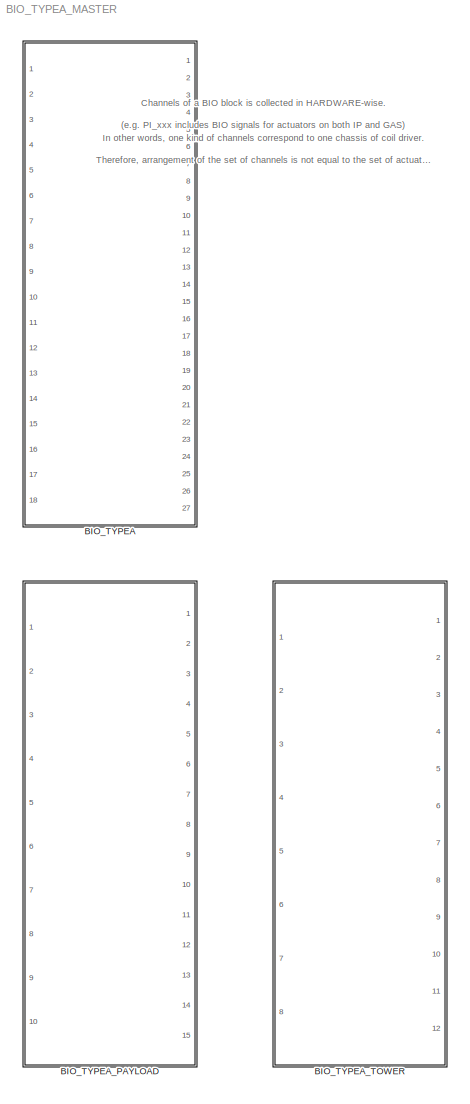
MODEL BIO_TYPEA_MASTER
KIND library
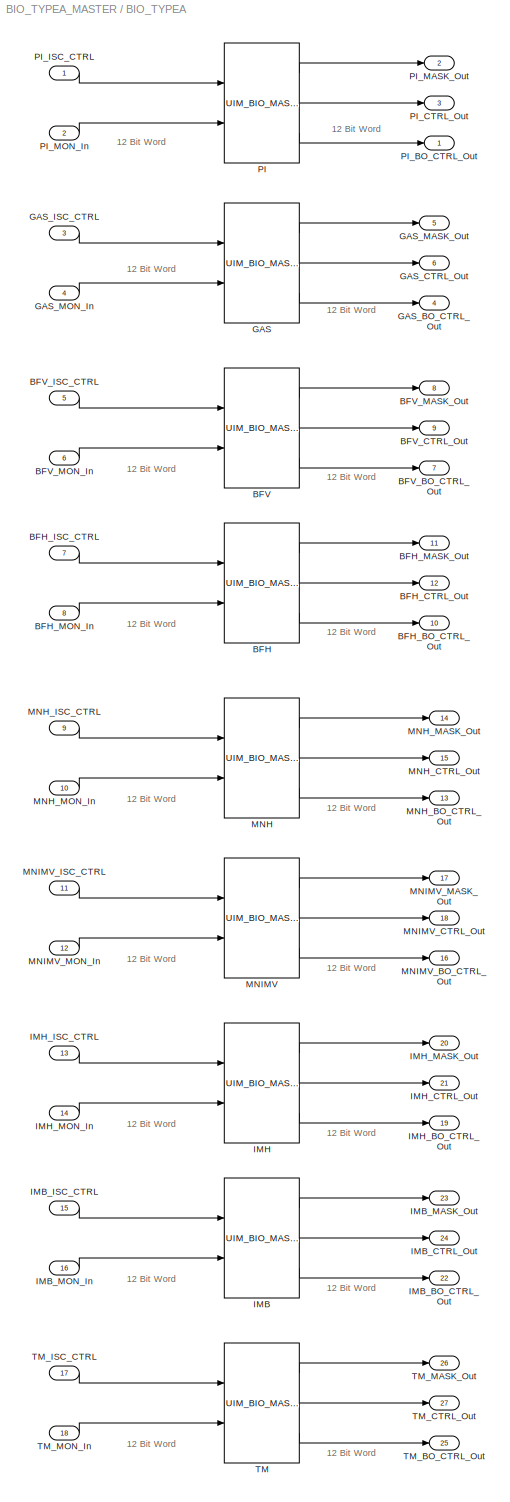
BLOCK [SubSystem] BIO_TYPEA
  Ports = [18, 27]
  RequestExecContextInheritance = off
  SID = 1
  Variant = off
BLOCK [Reference] BIO_TYPEA/BFH  REF=STATE_BIO_MASTER/UIM_BIO_MASTER
  Ports = [2, 3]
  SID = 57
  SourceBlock = STATE_BIO_MASTER/UIM_BIO_MASTER
  SourceType = SubSystem
BLOCK [Outport] BIO_TYPEA/BFH_BO_CTRL_Out
  IconDisplay = Port number
  Port = 10
  SID = 58
BLOCK [Outport] BIO_TYPEA/BFH_CTRL_Out
  IconDisplay = Port number
  Port = 12
  SID = 60
BLOCK [Inport] BIO_TYPEA/BFH_ISC_CTRL
  IconDisplay = Port number
  Port = 7
  SID = 55
BLOCK [Outport] BIO_TYPEA/BFH_MASK_Out
  IconDisplay = Port number
  Port = 11
  SID = 59
BLOCK [Inport] BIO_TYPEA/BFH_MON_In
  IconDisplay = Port number
  Port = 8
  SID = 56
BLOCK [Reference] BIO_TYPEA/BFV  REF=STATE_BIO_MASTER/UIM_BIO_MASTER
  Ports = [2, 3]
  SID = 36
  SourceBlock = STATE_BIO_MASTER/UIM_BIO_MASTER
  SourceType = SubSystem
BLOCK [Outport] BIO_TYPEA/BFV_BO_CTRL_Out
  IconDisplay = Port number
  Port = 7
  SID = 23
BLOCK [Outport] BIO_TYPEA/BFV_CTRL_Out
  IconDisplay = Port number
  Port = 9
  SID = 25
BLOCK [Inport] BIO_TYPEA/BFV_ISC_CTRL
  IconDisplay = Port number
  Port = 5
  SID = 8
BLOCK [Outport] BIO_TYPEA/BFV_MASK_Out
  IconDisplay = Port number
  Port = 8
  SID = 24
BLOCK [Inport] BIO_TYPEA/BFV_MON_In
  IconDisplay = Port number
  Port = 6
  SID = 9
BLOCK [Reference] BIO_TYPEA/GAS  REF=STATE_BIO_MASTER/UIM_BIO_MASTER
  Ports = [2, 3]
  SID = 35
  SourceBlock = STATE_BIO_MASTER/UIM_BIO_MASTER
  SourceType = SubSystem
BLOCK [Outport] BIO_TYPEA/GAS_BO_CTRL_Out
  IconDisplay = Port number
  Port = 4
  SID = 17
BLOCK [Outport] BIO_TYPEA/GAS_CTRL_Out
  IconDisplay = Port number
  Port = 6
  SID = 19
BLOCK [Inport] BIO_TYPEA/GAS_ISC_CTRL
  IconDisplay = Port number
  Port = 3
  SID = 4
BLOCK [Outport] BIO_TYPEA/GAS_MASK_Out
  IconDisplay = Port number
  Port = 5
  SID = 18
BLOCK [Inport] BIO_TYPEA/GAS_MON_In
  IconDisplay = Port number
  Port = 4
  SID = 5
BLOCK [Reference] BIO_TYPEA/IMB  REF=STATE_BIO_MASTER/UIM_BIO_MASTER
  Ports = [2, 3]
  SID = 73
  SourceBlock = STATE_BIO_MASTER/UIM_BIO_MASTER
  SourceType = SubSystem
BLOCK [Outport] BIO_TYPEA/IMB_BO_CTRL_Out
  IconDisplay = Port number
  Port = 22
  SID = 74
BLOCK [Outport] BIO_TYPEA/IMB_CTRL_Out
  IconDisplay = Port number
  Port = 24
  SID = 76
BLOCK [Inport] BIO_TYPEA/IMB_ISC_CTRL
  IconDisplay = Port number
  Port = 15
  SID = 71
BLOCK [Outport] BIO_TYPEA/IMB_MASK_Out
  IconDisplay = Port number
  Port = 23
  SID = 75
BLOCK [Inport] BIO_TYPEA/IMB_MON_In
  IconDisplay = Port number
  Port = 16
  SID = 72
BLOCK [Reference] BIO_TYPEA/IMH  REF=STATE_BIO_MASTER/UIM_BIO_MASTER
  Ports = [2, 3]
  SID = 40
  SourceBlock = STATE_BIO_MASTER/UIM_BIO_MASTER
  SourceType = SubSystem
BLOCK [Outport] BIO_TYPEA/IMH_BO_CTRL_Out
  IconDisplay = Port number
  Port = 19
  SID = 41
BLOCK [Outport] BIO_TYPEA/IMH_CTRL_Out
  IconDisplay = Port number
  Port = 21
  SID = 43
BLOCK [Inport] BIO_TYPEA/IMH_ISC_CTRL
  IconDisplay = Port number
  Port = 13
  SID = 38
BLOCK [Outport] BIO_TYPEA/IMH_MASK_Out
  IconDisplay = Port number
  Port = 20
  SID = 42
BLOCK [Inport] BIO_TYPEA/IMH_MON_In
  IconDisplay = Port number
  Port = 14
  SID = 39
BLOCK [Reference] BIO_TYPEA/MNH  REF=STATE_BIO_MASTER/UIM_BIO_MASTER
  Ports = [2, 3]
  SID = 37
  SourceBlock = STATE_BIO_MASTER/UIM_BIO_MASTER
  SourceType = SubSystem
BLOCK [Outport] BIO_TYPEA/MNH_BO_CTRL_Out
  IconDisplay = Port number
  Port = 13
  SID = 20
BLOCK [Outport] BIO_TYPEA/MNH_CTRL_Out
  IconDisplay = Port number
  Port = 15
  SID = 22
BLOCK [Inport] BIO_TYPEA/MNH_ISC_CTRL
  IconDisplay = Port number
  Port = 9
  SID = 6
BLOCK [Outport] BIO_TYPEA/MNH_MASK_Out
  IconDisplay = Port number
  Port = 14
  SID = 21
BLOCK [Inport] BIO_TYPEA/MNH_MON_In
  IconDisplay = Port number
  Port = 10
  SID = 7
BLOCK [Reference] BIO_TYPEA/MNIMV  REF=STATE_BIO_MASTER/UIM_BIO_MASTER
  Ports = [2, 3]
  SID = 65
  SourceBlock = STATE_BIO_MASTER/UIM_BIO_MASTER
  SourceType = SubSystem
BLOCK [Outport] BIO_TYPEA/MNIMV_BO_CTRL_Out
  IconDisplay = Port number
  Port = 16
  SID = 66
BLOCK [Outport] BIO_TYPEA/MNIMV_CTRL_Out
  IconDisplay = Port number
  Port = 18
  SID = 68
BLOCK [Inport] BIO_TYPEA/MNIMV_ISC_CTRL
  IconDisplay = Port number
  Port = 11
  SID = 63
BLOCK [Outport] BIO_TYPEA/MNIMV_MASK_Out
  IconDisplay = Port number
  Port = 17
  SID = 67
BLOCK [Inport] BIO_TYPEA/MNIMV_MON_In
  IconDisplay = Port number
  Port = 12
  SID = 64
BLOCK [Reference] BIO_TYPEA/PI  REF=STATE_BIO_MASTER/UIM_BIO_MASTER
  Ports = [2, 3]
  SID = 34
  SourceBlock = STATE_BIO_MASTER/UIM_BIO_MASTER
  SourceType = SubSystem
BLOCK [Outport] BIO_TYPEA/PI_BO_CTRL_Out
  IconDisplay = Port number
  SID = 14
BLOCK [Outport] BIO_TYPEA/PI_CTRL_Out
  IconDisplay = Port number
  Port = 3
  SID = 16
BLOCK [Inport] BIO_TYPEA/PI_ISC_CTRL
  IconDisplay = Port number
  SID = 2
BLOCK [Outport] BIO_TYPEA/PI_MASK_Out
  IconDisplay = Port number
  Port = 2
  SID = 15
BLOCK [Inport] BIO_TYPEA/PI_MON_In
  IconDisplay = Port number
  Port = 2
  SID = 3
BLOCK [Reference] BIO_TYPEA/TM  REF=STATE_BIO_MASTER/UIM_BIO_MASTER
  Ports = [2, 3]
  SID = 48
  SourceBlock = STATE_BIO_MASTER/UIM_BIO_MASTER
  SourceType = SubSystem
BLOCK [Outport] BIO_TYPEA/TM_BO_CTRL_Out
  IconDisplay = Port number
  Port = 25
  SID = 49
BLOCK [Outport] BIO_TYPEA/TM_CTRL_Out
  IconDisplay = Port number
  Port = 27
  SID = 51
BLOCK [Inport] BIO_TYPEA/TM_ISC_CTRL
  IconDisplay = Port number
  Port = 17
  SID = 46
BLOCK [Outport] BIO_TYPEA/TM_MASK_Out
  IconDisplay = Port number
  Port = 26
  SID = 50
BLOCK [Inport] BIO_TYPEA/TM_MON_In
  IconDisplay = Port number
  Port = 18
  SID = 47
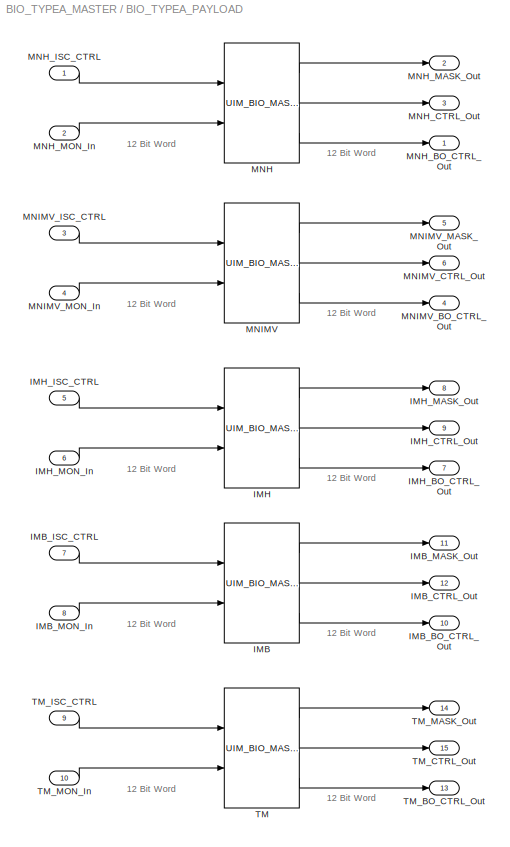
BLOCK [SubSystem] BIO_TYPEA_PAYLOAD
  Ports = [10, 15]
  RequestExecContextInheritance = off
  SID = 79
  Variant = off
BLOCK [Reference] BIO_TYPEA_PAYLOAD/IMB  REF=STATE_BIO_MASTER/UIM_BIO_MASTER
  Ports = [2, 3]
  SID = 102
  SourceBlock = STATE_BIO_MASTER/UIM_BIO_MASTER
  SourceType = SubSystem
BLOCK [Outport] BIO_TYPEA_PAYLOAD/IMB_BO_CTRL_Out
  IconDisplay = Port number
  Port = 10
  SID = 129
BLOCK [Outport] BIO_TYPEA_PAYLOAD/IMB_CTRL_Out
  IconDisplay = Port number
  Port = 12
  SID = 131
BLOCK [Inport] BIO_TYPEA_PAYLOAD/IMB_ISC_CTRL
  IconDisplay = Port number
  Port = 7
  SID = 95
BLOCK [Outport] BIO_TYPEA_PAYLOAD/IMB_MASK_Out
  IconDisplay = Port number
  Port = 11
  SID = 130
BLOCK [Inport] BIO_TYPEA_PAYLOAD/IMB_MON_In
  IconDisplay = Port number
  Port = 8
  SID = 96
BLOCK [Reference] BIO_TYPEA_PAYLOAD/IMH  REF=STATE_BIO_MASTER/UIM_BIO_MASTER
  Ports = [2, 3]
  SID = 103
  SourceBlock = STATE_BIO_MASTER/UIM_BIO_MASTER
  SourceType = SubSystem
BLOCK [Outport] BIO_TYPEA_PAYLOAD/IMH_BO_CTRL_Out
  IconDisplay = Port number
  Port = 7
  SID = 126
BLOCK [Outport] BIO_TYPEA_PAYLOAD/IMH_CTRL_Out
  IconDisplay = Port number
  Port = 9
  SID = 128
BLOCK [Inport] BIO_TYPEA_PAYLOAD/IMH_ISC_CTRL
  IconDisplay = Port number
  Port = 5
  SID = 93
BLOCK [Outport] BIO_TYPEA_PAYLOAD/IMH_MASK_Out
  IconDisplay = Port number
  Port = 8
  SID = 127
BLOCK [Inport] BIO_TYPEA_PAYLOAD/IMH_MON_In
  IconDisplay = Port number
  Port = 6
  SID = 94
BLOCK [Reference] BIO_TYPEA_PAYLOAD/MNH  REF=STATE_BIO_MASTER/UIM_BIO_MASTER
  Ports = [2, 3]
  SID = 104
  SourceBlock = STATE_BIO_MASTER/UIM_BIO_MASTER
  SourceType = SubSystem
BLOCK [Outport] BIO_TYPEA_PAYLOAD/MNH_BO_CTRL_Out
  IconDisplay = Port number
  SID = 120
BLOCK [Outport] BIO_TYPEA_PAYLOAD/MNH_CTRL_Out
  IconDisplay = Port number
  Port = 3
  SID = 122
BLOCK [Inport] BIO_TYPEA_PAYLOAD/MNH_ISC_CTRL
  IconDisplay = Port number
  SID = 89
BLOCK [Outport] BIO_TYPEA_PAYLOAD/MNH_MASK_Out
  IconDisplay = Port number
  Port = 2
  SID = 121
BLOCK [Inport] BIO_TYPEA_PAYLOAD/MNH_MON_In
  IconDisplay = Port number
  Port = 2
  SID = 90
BLOCK [Reference] BIO_TYPEA_PAYLOAD/MNIMV  REF=STATE_BIO_MASTER/UIM_BIO_MASTER
  Ports = [2, 3]
  SID = 105
  SourceBlock = STATE_BIO_MASTER/UIM_BIO_MASTER
  SourceType = SubSystem
BLOCK [Outport] BIO_TYPEA_PAYLOAD/MNIMV_BO_CTRL_Out
  IconDisplay = Port number
  Port = 4
  SID = 123
BLOCK [Outport] BIO_TYPEA_PAYLOAD/MNIMV_CTRL_Out
  IconDisplay = Port number
  Port = 6
  SID = 125
BLOCK [Inport] BIO_TYPEA_PAYLOAD/MNIMV_ISC_CTRL
  IconDisplay = Port number
  Port = 3
  SID = 91
BLOCK [Outport] BIO_TYPEA_PAYLOAD/MNIMV_MASK_Out
  IconDisplay = Port number
  Port = 5
  SID = 124
BLOCK [Inport] BIO_TYPEA_PAYLOAD/MNIMV_MON_In
  IconDisplay = Port number
  Port = 4
  SID = 92
BLOCK [Reference] BIO_TYPEA_PAYLOAD/TM  REF=STATE_BIO_MASTER/UIM_BIO_MASTER
  Ports = [2, 3]
  SID = 107
  SourceBlock = STATE_BIO_MASTER/UIM_BIO_MASTER
  SourceType = SubSystem
BLOCK [Outport] BIO_TYPEA_PAYLOAD/TM_BO_CTRL_Out
  IconDisplay = Port number
  Port = 13
  SID = 132
BLOCK [Outport] BIO_TYPEA_PAYLOAD/TM_CTRL_Out
  IconDisplay = Port number
  Port = 15
  SID = 134
BLOCK [Inport] BIO_TYPEA_PAYLOAD/TM_ISC_CTRL
  IconDisplay = Port number
  Port = 9
  SID = 97
BLOCK [Outport] BIO_TYPEA_PAYLOAD/TM_MASK_Out
  IconDisplay = Port number
  Port = 14
  SID = 133
BLOCK [Inport] BIO_TYPEA_PAYLOAD/TM_MON_In
  IconDisplay = Port number
  Port = 10
  SID = 98
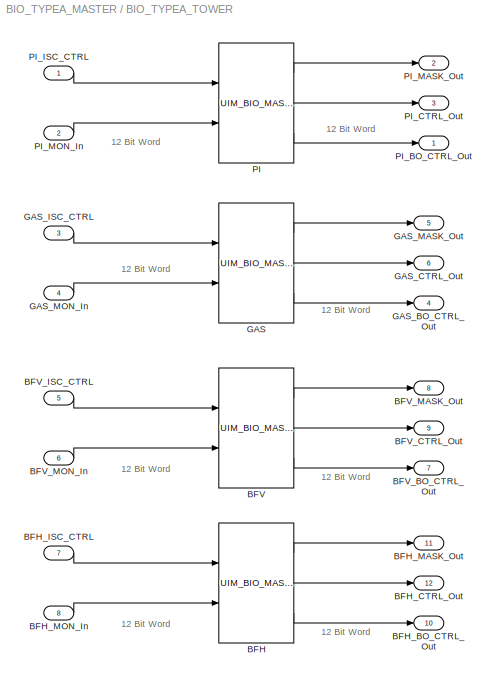
BLOCK [SubSystem] BIO_TYPEA_TOWER
  Ports = [8, 12]
  RequestExecContextInheritance = off
  SID = 80
  Variant = off
BLOCK [Reference] BIO_TYPEA_TOWER/BFH  REF=STATE_BIO_MASTER/UIM_BIO_MASTER
  Ports = [2, 3]
  SID = 171
  SourceBlock = STATE_BIO_MASTER/UIM_BIO_MASTER
  SourceType = SubSystem
BLOCK [Outport] BIO_TYPEA_TOWER/BFH_BO_CTRL_Out
  IconDisplay = Port number
  Port = 10
  SID = 189
BLOCK [Outport] BIO_TYPEA_TOWER/BFH_CTRL_Out
  IconDisplay = Port number
  Port = 12
  SID = 191
BLOCK [Inport] BIO_TYPEA_TOWER/BFH_ISC_CTRL
  IconDisplay = Port number
  Port = 7
  SID = 159
BLOCK [Outport] BIO_TYPEA_TOWER/BFH_MASK_Out
  IconDisplay = Port number
  Port = 11
  SID = 190
BLOCK [Inport] BIO_TYPEA_TOWER/BFH_MON_In
  IconDisplay = Port number
  Port = 8
  SID = 160
BLOCK [Reference] BIO_TYPEA_TOWER/BFV  REF=STATE_BIO_MASTER/UIM_BIO_MASTER
  Ports = [2, 3]
  SID = 172
  SourceBlock = STATE_BIO_MASTER/UIM_BIO_MASTER
  SourceType = SubSystem
BLOCK [Outport] BIO_TYPEA_TOWER/BFV_BO_CTRL_Out
  IconDisplay = Port number
  Port = 7
  SID = 186
BLOCK [Outport] BIO_TYPEA_TOWER/BFV_CTRL_Out
  IconDisplay = Port number
  Port = 9
  SID = 188
BLOCK [Inport] BIO_TYPEA_TOWER/BFV_ISC_CTRL
  IconDisplay = Port number
  Port = 5
  SID = 157
BLOCK [Outport] BIO_TYPEA_TOWER/BFV_MASK_Out
  IconDisplay = Port number
  Port = 8
  SID = 187
BLOCK [Inport] BIO_TYPEA_TOWER/BFV_MON_In
  IconDisplay = Port number
  Port = 6
  SID = 158
BLOCK [Reference] BIO_TYPEA_TOWER/GAS  REF=STATE_BIO_MASTER/UIM_BIO_MASTER
  Ports = [2, 3]
  SID = 173
  SourceBlock = STATE_BIO_MASTER/UIM_BIO_MASTER
  SourceType = SubSystem
BLOCK [Outport] BIO_TYPEA_TOWER/GAS_BO_CTRL_Out
  IconDisplay = Port number
  Port = 4
  SID = 183
BLOCK [Outport] BIO_TYPEA_TOWER/GAS_CTRL_Out
  IconDisplay = Port number
  Port = 6
  SID = 185
BLOCK [Inport] BIO_TYPEA_TOWER/GAS_ISC_CTRL
  IconDisplay = Port number
  Port = 3
  SID = 155
BLOCK [Outport] BIO_TYPEA_TOWER/GAS_MASK_Out
  IconDisplay = Port number
  Port = 5
  SID = 184
BLOCK [Inport] BIO_TYPEA_TOWER/GAS_MON_In
  IconDisplay = Port number
  Port = 4
  SID = 156
BLOCK [Reference] BIO_TYPEA_TOWER/PI  REF=STATE_BIO_MASTER/UIM_BIO_MASTER
  Ports = [2, 3]
  SID = 178
  SourceBlock = STATE_BIO_MASTER/UIM_BIO_MASTER
  SourceType = SubSystem
BLOCK [Outport] BIO_TYPEA_TOWER/PI_BO_CTRL_Out
  IconDisplay = Port number
  SID = 180
BLOCK [Outport] BIO_TYPEA_TOWER/PI_CTRL_Out
  IconDisplay = Port number
  Port = 3
  SID = 182
BLOCK [Inport] BIO_TYPEA_TOWER/PI_ISC_CTRL
  IconDisplay = Port number
  SID = 153
BLOCK [Outport] BIO_TYPEA_TOWER/PI_MASK_Out
  IconDisplay = Port number
  Port = 2
  SID = 181
BLOCK [Inport] BIO_TYPEA_TOWER/PI_MON_In
  IconDisplay = Port number
  Port = 2
  SID = 154
ANNOTATION (root): Channels of a BIO block is collected in HARDWARE-wise.\nIn other words, one kind of channels correspond to one chassis of coil driver.\n(e.g. PI_xxx includes BIO signals for actuators on both IP and GAS)\nTherefore, arrangement of the set of channels is not equal to the set of actuators on each stage.
ANNOTATION BIO_TYPEA: 12 Bit Word
ANNOTATION BIO_TYPEA_PAYLOAD: 12 Bit Word
ANNOTATION BIO_TYPEA_TOWER: 12 Bit Word
LINE BIO_TYPEA/BFH:1 -> BIO_TYPEA/BFH_MASK_Out:1
LINE BIO_TYPEA/BFH:2 -> BIO_TYPEA/BFH_CTRL_Out:1
LINE BIO_TYPEA/BFH:3 -> BIO_TYPEA/BFH_BO_CTRL_Out:1
LINE BIO_TYPEA/BFH_ISC_CTRL:1 -> BIO_TYPEA/BFH:1
LINE BIO_TYPEA/BFH_MON_In:1 -> BIO_TYPEA/BFH:2
LINE BIO_TYPEA/BFV:1 -> BIO_TYPEA/BFV_MASK_Out:1
LINE BIO_TYPEA/BFV:2 -> BIO_TYPEA/BFV_CTRL_Out:1
LINE BIO_TYPEA/BFV:3 -> BIO_TYPEA/BFV_BO_CTRL_Out:1
LINE BIO_TYPEA/BFV_ISC_CTRL:1 -> BIO_TYPEA/BFV:1
LINE BIO_TYPEA/BFV_MON_In:1 -> BIO_TYPEA/BFV:2
LINE BIO_TYPEA/GAS:1 -> BIO_TYPEA/GAS_MASK_Out:1
LINE BIO_TYPEA/GAS:2 -> BIO_TYPEA/GAS_CTRL_Out:1
LINE BIO_TYPEA/GAS:3 -> BIO_TYPEA/GAS_BO_CTRL_Out:1
LINE BIO_TYPEA/GAS_ISC_CTRL:1 -> BIO_TYPEA/GAS:1
LINE BIO_TYPEA/GAS_MON_In:1 -> BIO_TYPEA/GAS:2
LINE BIO_TYPEA/IMB:1 -> BIO_TYPEA/IMB_MASK_Out:1
LINE BIO_TYPEA/IMB:2 -> BIO_TYPEA/IMB_CTRL_Out:1
LINE BIO_TYPEA/IMB:3 -> BIO_TYPEA/IMB_BO_CTRL_Out:1
LINE BIO_TYPEA/IMB_ISC_CTRL:1 -> BIO_TYPEA/IMB:1
LINE BIO_TYPEA/IMB_MON_In:1 -> BIO_TYPEA/IMB:2
LINE BIO_TYPEA/IMH:1 -> BIO_TYPEA/IMH_MASK_Out:1
LINE BIO_TYPEA/IMH:2 -> BIO_TYPEA/IMH_CTRL_Out:1
LINE BIO_TYPEA/IMH:3 -> BIO_TYPEA/IMH_BO_CTRL_Out:1
LINE BIO_TYPEA/IMH_ISC_CTRL:1 -> BIO_TYPEA/IMH:1
LINE BIO_TYPEA/IMH_MON_In:1 -> BIO_TYPEA/IMH:2
LINE BIO_TYPEA/MNH:1 -> BIO_TYPEA/MNH_MASK_Out:1
LINE BIO_TYPEA/MNH:2 -> BIO_TYPEA/MNH_CTRL_Out:1
LINE BIO_TYPEA/MNH:3 -> BIO_TYPEA/MNH_BO_CTRL_Out:1
LINE BIO_TYPEA/MNH_ISC_CTRL:1 -> BIO_TYPEA/MNH:1
LINE BIO_TYPEA/MNH_MON_In:1 -> BIO_TYPEA/MNH:2
LINE BIO_TYPEA/MNIMV:1 -> BIO_TYPEA/MNIMV_MASK_Out:1
LINE BIO_TYPEA/MNIMV:2 -> BIO_TYPEA/MNIMV_CTRL_Out:1
LINE BIO_TYPEA/MNIMV:3 -> BIO_TYPEA/MNIMV_BO_CTRL_Out:1
LINE BIO_TYPEA/MNIMV_ISC_CTRL:1 -> BIO_TYPEA/MNIMV:1
LINE BIO_TYPEA/MNIMV_MON_In:1 -> BIO_TYPEA/MNIMV:2
LINE BIO_TYPEA/PI:1 -> BIO_TYPEA/PI_MASK_Out:1
LINE BIO_TYPEA/PI:2 -> BIO_TYPEA/PI_CTRL_Out:1
LINE BIO_TYPEA/PI:3 -> BIO_TYPEA/PI_BO_CTRL_Out:1
LINE BIO_TYPEA/PI_ISC_CTRL:1 -> BIO_TYPEA/PI:1
LINE BIO_TYPEA/PI_MON_In:1 -> BIO_TYPEA/PI:2
LINE BIO_TYPEA/TM:1 -> BIO_TYPEA/TM_MASK_Out:1
LINE BIO_TYPEA/TM:2 -> BIO_TYPEA/TM_CTRL_Out:1
LINE BIO_TYPEA/TM:3 -> BIO_TYPEA/TM_BO_CTRL_Out:1
LINE BIO_TYPEA/TM_ISC_CTRL:1 -> BIO_TYPEA/TM:1
LINE BIO_TYPEA/TM_MON_In:1 -> BIO_TYPEA/TM:2
LINE BIO_TYPEA_PAYLOAD/IMB:1 -> BIO_TYPEA_PAYLOAD/IMB_MASK_Out:1
LINE BIO_TYPEA_PAYLOAD/IMB:2 -> BIO_TYPEA_PAYLOAD/IMB_CTRL_Out:1
LINE BIO_TYPEA_PAYLOAD/IMB:3 -> BIO_TYPEA_PAYLOAD/IMB_BO_CTRL_Out:1
LINE BIO_TYPEA_PAYLOAD/IMB_ISC_CTRL:1 -> BIO_TYPEA_PAYLOAD/IMB:1
LINE BIO_TYPEA_PAYLOAD/IMB_MON_In:1 -> BIO_TYPEA_PAYLOAD/IMB:2
LINE BIO_TYPEA_PAYLOAD/IMH:1 -> BIO_TYPEA_PAYLOAD/IMH_MASK_Out:1
LINE BIO_TYPEA_PAYLOAD/IMH:2 -> BIO_TYPEA_PAYLOAD/IMH_CTRL_Out:1
LINE BIO_TYPEA_PAYLOAD/IMH:3 -> BIO_TYPEA_PAYLOAD/IMH_BO_CTRL_Out:1
LINE BIO_TYPEA_PAYLOAD/IMH_ISC_CTRL:1 -> BIO_TYPEA_PAYLOAD/IMH:1
LINE BIO_TYPEA_PAYLOAD/IMH_MON_In:1 -> BIO_TYPEA_PAYLOAD/IMH:2
LINE BIO_TYPEA_PAYLOAD/MNH:1 -> BIO_TYPEA_PAYLOAD/MNH_MASK_Out:1
LINE BIO_TYPEA_PAYLOAD/MNH:2 -> BIO_TYPEA_PAYLOAD/MNH_CTRL_Out:1
LINE BIO_TYPEA_PAYLOAD/MNH:3 -> BIO_TYPEA_PAYLOAD/MNH_BO_CTRL_Out:1
LINE BIO_TYPEA_PAYLOAD/MNH_ISC_CTRL:1 -> BIO_TYPEA_PAYLOAD/MNH:1
LINE BIO_TYPEA_PAYLOAD/MNH_MON_In:1 -> BIO_TYPEA_PAYLOAD/MNH:2
LINE BIO_TYPEA_PAYLOAD/MNIMV:1 -> BIO_TYPEA_PAYLOAD/MNIMV_MASK_Out:1
LINE BIO_TYPEA_PAYLOAD/MNIMV:2 -> BIO_TYPEA_PAYLOAD/MNIMV_CTRL_Out:1
LINE BIO_TYPEA_PAYLOAD/MNIMV:3 -> BIO_TYPEA_PAYLOAD/MNIMV_BO_CTRL_Out:1
LINE BIO_TYPEA_PAYLOAD/MNIMV_ISC_CTRL:1 -> BIO_TYPEA_PAYLOAD/MNIMV:1
LINE BIO_TYPEA_PAYLOAD/MNIMV_MON_In:1 -> BIO_TYPEA_PAYLOAD/MNIMV:2
LINE BIO_TYPEA_PAYLOAD/TM:1 -> BIO_TYPEA_PAYLOAD/TM_MASK_Out:1
LINE BIO_TYPEA_PAYLOAD/TM:2 -> BIO_TYPEA_PAYLOAD/TM_CTRL_Out:1
LINE BIO_TYPEA_PAYLOAD/TM:3 -> BIO_TYPEA_PAYLOAD/TM_BO_CTRL_Out:1
LINE BIO_TYPEA_PAYLOAD/TM_ISC_CTRL:1 -> BIO_TYPEA_PAYLOAD/TM:1
LINE BIO_TYPEA_PAYLOAD/TM_MON_In:1 -> BIO_TYPEA_PAYLOAD/TM:2
LINE BIO_TYPEA_TOWER/BFH:1 -> BIO_TYPEA_TOWER/BFH_MASK_Out:1
LINE BIO_TYPEA_TOWER/BFH:2 -> BIO_TYPEA_TOWER/BFH_CTRL_Out:1
LINE BIO_TYPEA_TOWER/BFH:3 -> BIO_TYPEA_TOWER/BFH_BO_CTRL_Out:1
LINE BIO_TYPEA_TOWER/BFH_ISC_CTRL:1 -> BIO_TYPEA_TOWER/BFH:1
LINE BIO_TYPEA_TOWER/BFH_MON_In:1 -> BIO_TYPEA_TOWER/BFH:2
LINE BIO_TYPEA_TOWER/BFV:1 -> BIO_TYPEA_TOWER/BFV_MASK_Out:1
LINE BIO_TYPEA_TOWER/BFV:2 -> BIO_TYPEA_TOWER/BFV_CTRL_Out:1
LINE BIO_TYPEA_TOWER/BFV:3 -> BIO_TYPEA_TOWER/BFV_BO_CTRL_Out:1
LINE BIO_TYPEA_TOWER/BFV_ISC_CTRL:1 -> BIO_TYPEA_TOWER/BFV:1
LINE BIO_TYPEA_TOWER/BFV_MON_In:1 -> BIO_TYPEA_TOWER/BFV:2
LINE BIO_TYPEA_TOWER/GAS:1 -> BIO_TYPEA_TOWER/GAS_MASK_Out:1
LINE BIO_TYPEA_TOWER/GAS:2 -> BIO_TYPEA_TOWER/GAS_CTRL_Out:1
LINE BIO_TYPEA_TOWER/GAS:3 -> BIO_TYPEA_TOWER/GAS_BO_CTRL_Out:1
LINE BIO_TYPEA_TOWER/GAS_ISC_CTRL:1 -> BIO_TYPEA_TOWER/GAS:1
LINE BIO_TYPEA_TOWER/GAS_MON_In:1 -> BIO_TYPEA_TOWER/GAS:2
LINE BIO_TYPEA_TOWER/PI:1 -> BIO_TYPEA_TOWER/PI_MASK_Out:1
LINE BIO_TYPEA_TOWER/PI:2 -> BIO_TYPEA_TOWER/PI_CTRL_Out:1
LINE BIO_TYPEA_TOWER/PI:3 -> BIO_TYPEA_TOWER/PI_BO_CTRL_Out:1
LINE BIO_TYPEA_TOWER/PI_ISC_CTRL:1 -> BIO_TYPEA_TOWER/PI:1
LINE BIO_TYPEA_TOWER/PI_MON_In:1 -> BIO_TYPEA_TOWER/PI:2
